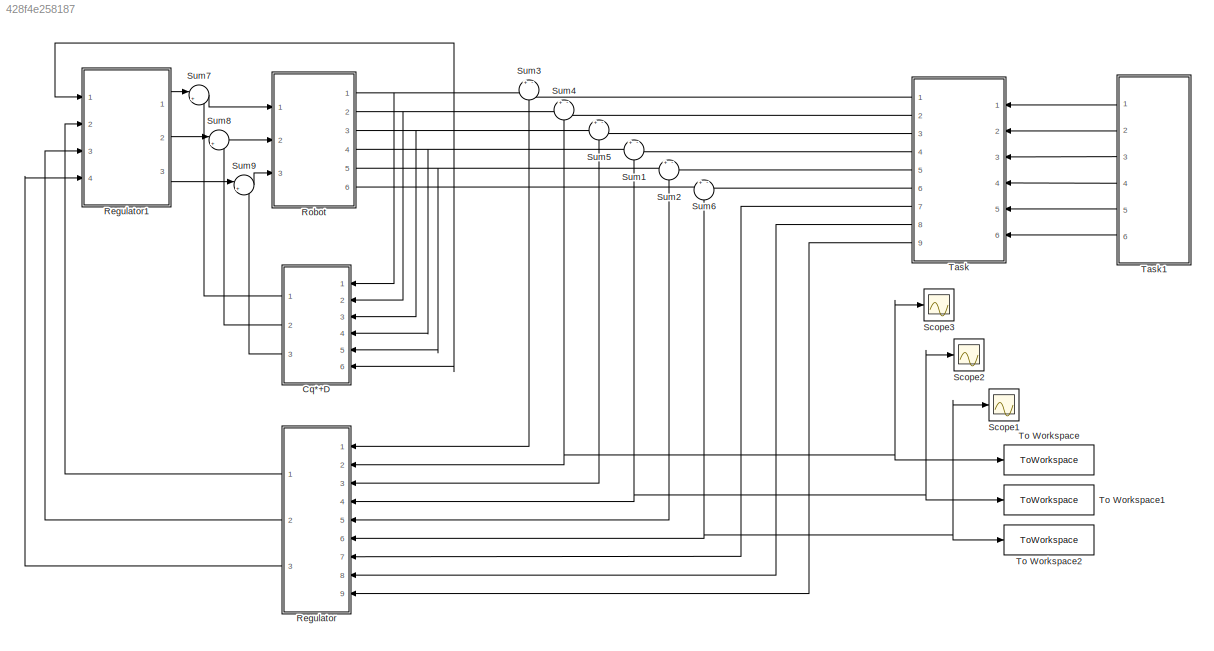
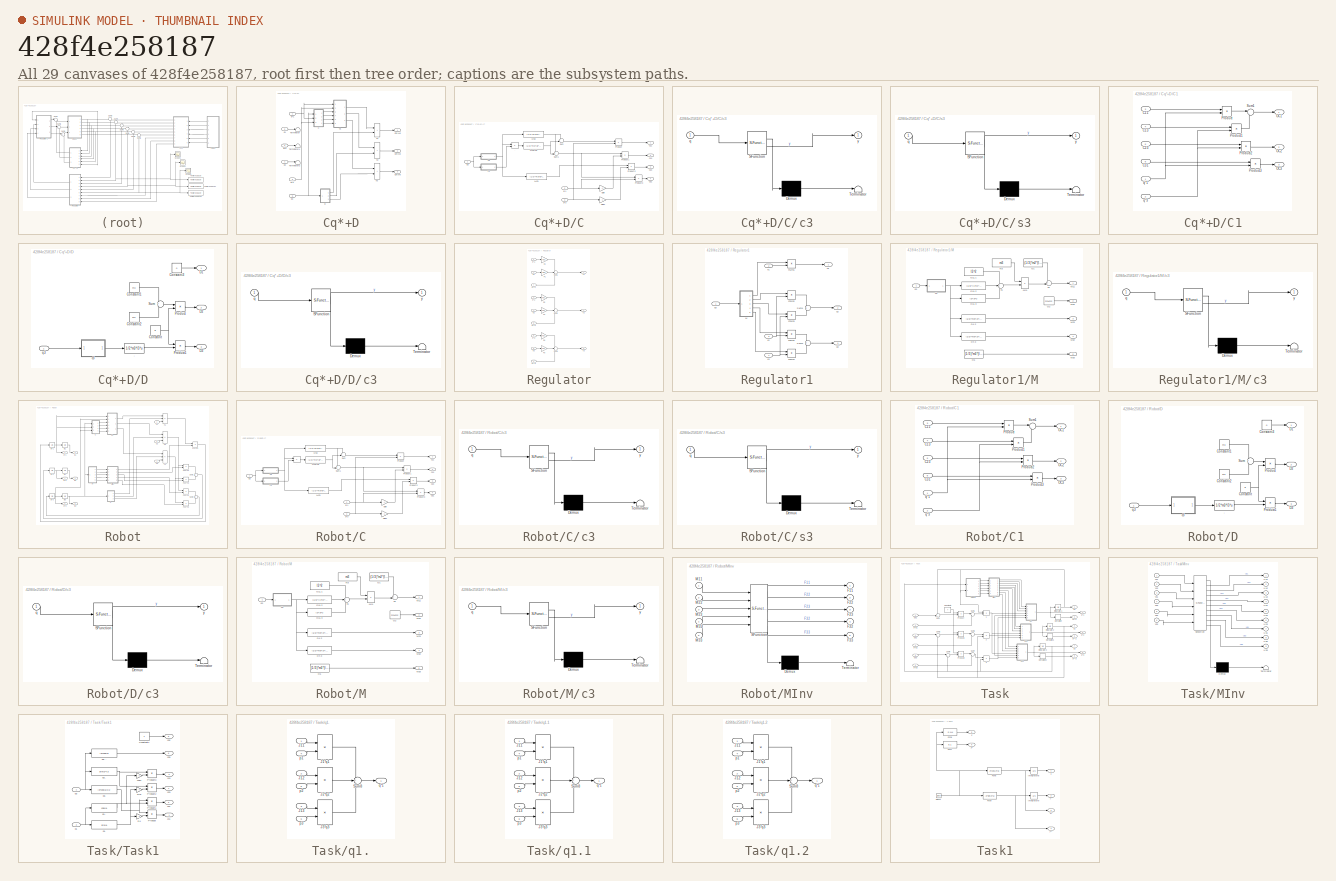
[diagram: thumbnail index - all 29 canvases of the model, root first then tree order]
MODEL slx_428f4e258187
KIND model
CONFIG AbsTol = auto
CONFIG EnableMultiTasking = off
CONFIG FixedStep = auto
CONFIG MaxStep = auto
CONFIG MinStep = auto
CONFIG RelTol = 1e-8
CONFIG SampleTimeConstraint = Unconstrained
CONFIG Solver = ode45
CONFIG SolverName = ode45
CONFIG StartTime = 0.0
CONFIG StopTime = T
BLOCK [SubSystem] Cq*+D
  Ports = [6, 3]
  RequestExecContextInheritance = off
BLOCK [Outport] Cq*+D/ Cq*1+d
BLOCK [SubSystem] Cq*+D/C
  Ports = [3, 4]
  RequestExecContextInheritance = off
BLOCK [Product] Cq*+D/C/.
  Ports = [2, 1]
BLOCK [Outport] Cq*+D/C/C11
BLOCK [Outport] Cq*+D/C/C13
  Port = 2
BLOCK [Outport] Cq*+D/C/C23
  Port = 3
BLOCK [Outport] Cq*+D/C/C31
  Port = 4
BLOCK [Gain] Cq*+D/C/Gain
  Gain = -1
BLOCK [Gain] Cq*+D/C/Gain1
  Gain = -1
BLOCK [Product] Cq*+D/C/Product
  Ports = [2, 1]
BLOCK [Product] Cq*+D/C/Product1
  Ports = [2, 1]
BLOCK [Product] Cq*+D/C/Product2
  Ports = [2, 1]
BLOCK [Product] Cq*+D/C/Product3
  Ports = [2, 1]
BLOCK [Sum] Cq*+D/C/Sum
  Inputs = --
  Ports = [2, 1]
BLOCK [Sum] Cq*+D/C/Sum1
  Inputs = ++|
  Ports = [2, 1]
BLOCK [SubSystem] Cq*+D/C/c3
  ErrorFcn = Stateflow.Translate.translate
  PermitHierarchicalResolution = ExplicitOnly
  Ports = [1, 1]
  RequestExecContextInheritance = off
  SFBlockType = MATLAB Function
  TreatAsAtomicUnit = on
BLOCK [Demux] Cq*+D/C/c3/ Demux 
  Outputs = 1
  Ports = [1, 1]
BLOCK [S-Function] Cq*+D/C/c3/ SFunction 
  EnableBusSupport = on
  FunctionName = sf_sfun
  PortCounts = [1 2]
  Ports = [1, 2]
  SFcnIsStateOwnerBlock = off
  SFunctionDeploymentMode = off
  Tag = Stateflow S-Function 4
BLOCK [Terminator] Cq*+D/C/c3/ Terminator 
BLOCK [Inport] Cq*+D/C/c3/q
BLOCK [Outport] Cq*+D/C/c3/y
BLOCK [Inport] Cq*+D/C/q*1
  Port = 2
BLOCK [Inport] Cq*+D/C/q*3
  Port = 3
BLOCK [Inport] Cq*+D/C/q3
BLOCK [SubSystem] Cq*+D/C/s3
  ErrorFcn = Stateflow.Translate.translate
  PermitHierarchicalResolution = ExplicitOnly
  Ports = [1, 1]
  RequestExecContextInheritance = off
  SFBlockType = MATLAB Function
  TreatAsAtomicUnit = on
BLOCK [Demux] Cq*+D/C/s3/ Demux 
  Outputs = 1
  Ports = [1, 1]
BLOCK [S-Function] Cq*+D/C/s3/ SFunction 
  EnableBusSupport = on
  FunctionName = sf_sfun
  PortCounts = [1 2]
  Ports = [1, 2]
  SFcnIsStateOwnerBlock = off
  SFunctionDeploymentMode = off
  Tag = Stateflow S-Function 7
BLOCK [Terminator] Cq*+D/C/s3/ Terminator 
BLOCK [Inport] Cq*+D/C/s3/q
BLOCK [Outport] Cq*+D/C/s3/y
BLOCK [Fcn] Cq*+D/C/u=C3*S3
  Expr = (1/3)*m3*(l3^2)*u
BLOCK [Fcn] Cq*+D/C/u=S3
  Expr = (1/2)*m3*l2*l3*u
BLOCK [Fcn] Cq*+D/C/u=S3.
  Expr = (1/2)*m3*l2*l3*u
BLOCK [SubSystem] Cq*+D/C1
  Ports = [6, 3]
  RequestExecContextInheritance = off
BLOCK [Inport] Cq*+D/C1/C11
  Port = 3
BLOCK [Inport] Cq*+D/C1/C13
  Port = 4
BLOCK [Inport] Cq*+D/C1/C23
  Port = 5
BLOCK [Inport] Cq*+D/C1/C31
  Port = 6
BLOCK [Outport] Cq*+D/C1/OC1
BLOCK [Outport] Cq*+D/C1/OC2
  Port = 2
BLOCK [Outport] Cq*+D/C1/OC3
  Port = 3
BLOCK [Product] Cq*+D/C1/Product
  Ports = [2, 1]
BLOCK [Product] Cq*+D/C1/Product1
  Ports = [2, 1]
BLOCK [Product] Cq*+D/C1/Product2
  Ports = [2, 1]
BLOCK [Product] Cq*+D/C1/Product3
  Ports = [2, 1]
BLOCK [Sum] Cq*+D/C1/Sum1
  Inputs = |++
  Ports = [2, 1]
BLOCK [Inport] Cq*+D/C1/q*1
BLOCK [Inport] Cq*+D/C1/q*3
  Port = 2
BLOCK [Outport] Cq*+D/Cq*2+d
  Port = 2
BLOCK [Outport] Cq*+D/Cq*3+d
  Port = 3
BLOCK [SubSystem] Cq*+D/D
  Ports = [1, 3]
  RequestExecContextInheritance = off
BLOCK [Fcn] Cq*+D/D/.
  Expr = 1/2*m3*l3*u
BLOCK [Constant] Cq*+D/D/Constant
  Value = g
BLOCK [Constant] Cq*+D/D/Constant1
  Value = m3
BLOCK [Constant] Cq*+D/D/Constant2
  Value = m2
BLOCK [Constant] Cq*+D/D/Constant3
  Value = 0
BLOCK [Outport] Cq*+D/D/D1
BLOCK [Outport] Cq*+D/D/D2
  Port = 2
BLOCK [Outport] Cq*+D/D/D3
  Port = 3
BLOCK [Product] Cq*+D/D/Product
  Ports = [2, 1]
BLOCK [Product] Cq*+D/D/Product1
  Ports = [2, 1]
BLOCK [Sum] Cq*+D/D/Sum
  Ports = [2, 1]
BLOCK [SubSystem] Cq*+D/D/c3
  ErrorFcn = Stateflow.Translate.translate
  PermitHierarchicalResolution = ExplicitOnly
  Ports = [1, 1]
  RequestExecContextInheritance = off
  SFBlockType = MATLAB Function
  TreatAsAtomicUnit = on
BLOCK [Demux] Cq*+D/D/c3/ Demux 
  Outputs = 1
  Ports = [1, 1]
BLOCK [S-Function] Cq*+D/D/c3/ SFunction 
  EnableBusSupport = on
  FunctionName = sf_sfun
  PortCounts = [1 2]
  Ports = [1, 2]
  SFcnIsStateOwnerBlock = off
  SFunctionDeploymentMode = off
  Tag = Stateflow S-Function 8
BLOCK [Terminator] Cq*+D/D/c3/ Terminator 
BLOCK [Inport] Cq*+D/D/c3/q
BLOCK [Outport] Cq*+D/D/c3/y
BLOCK [Inport] Cq*+D/D/q3
BLOCK [Terminator] Cq*+D/Terminator
BLOCK [Terminator] Cq*+D/Terminator1
BLOCK [Terminator] Cq*+D/Terminator2
BLOCK [Sum] Cq*+D/h1
  IconShape = rectangular
  Ports = [2, 1]
BLOCK [Sum] Cq*+D/h2
  IconShape = rectangular
  Ports = [2, 1]
BLOCK [Sum] Cq*+D/h3
  IconShape = rectangular
  Ports = [2, 1]
BLOCK [Inport] Cq*+D/q*1
BLOCK [Inport] Cq*+D/q*2
  Port = 3
BLOCK [Inport] Cq*+D/q*3
  Port = 5
BLOCK [Inport] Cq*+D/q1
  Port = 2
BLOCK [Inport] Cq*+D/q2
  Port = 4
BLOCK [Inport] Cq*+D/q3
  Port = 6
BLOCK [SubSystem] Regulator
  Ports = [9, 3]
  RequestExecContextInheritance = off
BLOCK [Outport] Regulator/ v1
BLOCK [Gain] Regulator/D1
  Gain = Kd1
BLOCK [Gain] Regulator/D2
  Gain = Kd1
BLOCK [Gain] Regulator/D3
  Gain = Kd1
BLOCK [Gain] Regulator/P1
  Gain = Kp1
BLOCK [Gain] Regulator/P2
  Gain = Kp1
BLOCK [Gain] Regulator/P3
  Gain = Kp1
BLOCK [Sum] Regulator/Sum1
  Inputs = --+
  Ports = [3, 1]
BLOCK [Sum] Regulator/Sum2
  Inputs = --+
  Ports = [3, 1]
BLOCK [Sum] Regulator/Sum3
  Inputs = --+
  Ports = [3, 1]
BLOCK [Inport] Regulator/e**1
  Port = 7
BLOCK [Inport] Regulator/e**2
  Port = 8
BLOCK [Inport] Regulator/e**3
  Port = 9
BLOCK [Inport] Regulator/e*1
BLOCK [Inport] Regulator/e*2
  Port = 3
BLOCK [Inport] Regulator/e*3
  Port = 5
BLOCK [Inport] Regulator/e1
  Port = 2
BLOCK [Inport] Regulator/e2
  Port = 4
BLOCK [Inport] Regulator/e3
  Port = 6
BLOCK [Outport] Regulator/v2
  Port = 2
BLOCK [Outport] Regulator/v3
  Port = 3
BLOCK [SubSystem] Regulator1
  Ports = [4, 3]
  RequestExecContextInheritance = off
BLOCK [Outport] Regulator1/ u1
BLOCK [Product] Regulator1/F11*h1
  Ports = [2, 1]
BLOCK [Product] Regulator1/F22*h2
  Ports = [2, 1]
BLOCK [Product] Regulator1/F23*h3
  Ports = [2, 1]
BLOCK [Product] Regulator1/F32*h2
  Ports = [2, 1]
BLOCK [Product] Regulator1/F33*h3
  Ports = [2, 1]
BLOCK [SubSystem] Regulator1/M
  Ports = [1, 5]
  RequestExecContextInheritance = off
BLOCK [Product] Regulator1/M/.M11
  Ports = [2, 1]
BLOCK [Outport] Regulator1/M/M11
BLOCK [Outport] Regulator1/M/M22
  Port = 2
BLOCK [Outport] Regulator1/M/M23
  Port = 3
BLOCK [Outport] Regulator1/M/M32
  Port = 4
BLOCK [Outport] Regulator1/M/M33
  Port = 5
BLOCK [Constant] Regulator1/M/O1
  Value = (1/3)*m2*(l2^2)
BLOCK [Constant] Regulator1/M/O11.1
  Value = l2^2
BLOCK [Fcn] Regulator1/M/O11.2
  Expr = (1/3)*(l3^2)*(u^2)
BLOCK [Fcn] Regulator1/M/O11.3
  Expr = l2*l3*u
BLOCK [Constant] Regulator1/M/O2
  Value = m3+m2
BLOCK [Fcn] Regulator1/M/O4.2
  Expr = (1/2)*m3*l2*l3*u
BLOCK [Fcn] Regulator1/M/O4.3
  Expr = (1/2)*m3*l2*l3*u
BLOCK [Constant] Regulator1/M/O5
  Value = (1/3)*m3*(l3^2)
BLOCK [SubSystem] Regulator1/M/c3
  ErrorFcn = Stateflow.Translate.translate
  PermitHierarchicalResolution = ExplicitOnly
  Ports = [1, 1]
  RequestExecContextInheritance = off
  SFBlockType = MATLAB Function
  TreatAsAtomicUnit = on
BLOCK [Demux] Regulator1/M/c3/ Demux 
  Outputs = 1
  Ports = [1, 1]
BLOCK [S-Function] Regulator1/M/c3/ SFunction 
  EnableBusSupport = on
  FunctionName = sf_sfun
  PortCounts = [1 2]
  Ports = [1, 2]
  SFcnIsStateOwnerBlock = off
  SFunctionDeploymentMode = off
  Tag = Stateflow S-Function 9
BLOCK [Terminator] Regulator1/M/c3/ Terminator 
BLOCK [Inport] Regulator1/M/c3/q
BLOCK [Outport] Regulator1/M/c3/y
BLOCK [Sum] Regulator1/M/h1
  Inputs = +++
  Ports = [3, 1]
BLOCK [Sum] Regulator1/M/h2
  Inputs = ++|
  Ports = [2, 1]
BLOCK [Constant] Regulator1/M/m3
  Value = m3
BLOCK [Inport] Regulator1/M/q3
BLOCK [Sum] Regulator1/Sum1
  Ports = [2, 1]
BLOCK [Sum] Regulator1/Sum2
  Ports = [2, 1]
BLOCK [Inport] Regulator1/q3
BLOCK [Outport] Regulator1/u2
  Port = 2
BLOCK [Outport] Regulator1/u3
  Port = 3
BLOCK [Inport] Regulator1/v1
  Port = 2
BLOCK [Inport] Regulator1/v2
  Port = 3
BLOCK [Inport] Regulator1/v3
  Port = 4
BLOCK [SubSystem] Robot
  Ports = [3, 6]
  RequestExecContextInheritance = off
BLOCK [SubSystem] Robot/C
  Ports = [3, 4]
  RequestExecContextInheritance = off
BLOCK [Product] Robot/C/.
  Ports = [2, 1]
BLOCK [Outport] Robot/C/C11
BLOCK [Outport] Robot/C/C13
  Port = 2
BLOCK [Outport] Robot/C/C23
  Port = 3
BLOCK [Outport] Robot/C/C31
  Port = 4
BLOCK [Gain] Robot/C/Gain
  Gain = -1
BLOCK [Gain] Robot/C/Gain1
  Gain = -1
BLOCK [Product] Robot/C/Product
  Ports = [2, 1]
BLOCK [Product] Robot/C/Product1
  Ports = [2, 1]
BLOCK [Product] Robot/C/Product2
  Ports = [2, 1]
BLOCK [Product] Robot/C/Product3
  Ports = [2, 1]
BLOCK [Sum] Robot/C/Sum
  Inputs = --
  Ports = [2, 1]
BLOCK [Sum] Robot/C/Sum1
  Inputs = ++|
  Ports = [2, 1]
BLOCK [SubSystem] Robot/C/c3
  ErrorFcn = Stateflow.Translate.translate
  PermitHierarchicalResolution = ExplicitOnly
  Ports = [1, 1]
  RequestExecContextInheritance = off
  SFBlockType = MATLAB Function
  TreatAsAtomicUnit = on
BLOCK [Demux] Robot/C/c3/ Demux 
  Outputs = 1
  Ports = [1, 1]
BLOCK [S-Function] Robot/C/c3/ SFunction 
  EnableBusSupport = on
  FunctionName = sf_sfun
  PortCounts = [1 2]
  Ports = [1, 2]
  SFcnIsStateOwnerBlock = off
  SFunctionDeploymentMode = off
  Tag = Stateflow S-Function 2
BLOCK [Terminator] Robot/C/c3/ Terminator 
BLOCK [Inport] Robot/C/c3/q
BLOCK [Outport] Robot/C/c3/y
BLOCK [Inport] Robot/C/q*1
  Port = 2
BLOCK [Inport] Robot/C/q*3
  Port = 3
BLOCK [Inport] Robot/C/q3
BLOCK [SubSystem] Robot/C/s3
  ErrorFcn = Stateflow.Translate.translate
  PermitHierarchicalResolution = ExplicitOnly
  Ports = [1, 1]
  RequestExecContextInheritance = off
  SFBlockType = MATLAB Function
  TreatAsAtomicUnit = on
BLOCK [Demux] Robot/C/s3/ Demux 
  Outputs = 1
  Ports = [1, 1]
BLOCK [S-Function] Robot/C/s3/ SFunction 
  EnableBusSupport = on
  FunctionName = sf_sfun
  PortCounts = [1 2]
  Ports = [1, 2]
  SFcnIsStateOwnerBlock = off
  SFunctionDeploymentMode = off
  Tag = Stateflow S-Function 5
BLOCK [Terminator] Robot/C/s3/ Terminator 
BLOCK [Inport] Robot/C/s3/q
BLOCK [Outport] Robot/C/s3/y
BLOCK [Fcn] Robot/C/u=C3*S3
  Expr = (1/3)*m3*(l3^2)*u
BLOCK [Fcn] Robot/C/u=S3
  Expr = (1/2)*m3*l2*l3*u
BLOCK [Fcn] Robot/C/u=S3.
  Expr = (1/2)*m3*l2*l3*u
BLOCK [SubSystem] Robot/C1
  Ports = [6, 3]
  RequestExecContextInheritance = off
BLOCK [Inport] Robot/C1/C11
  Port = 3
BLOCK [Inport] Robot/C1/C13
  Port = 4
BLOCK [Inport] Robot/C1/C23
  Port = 5
BLOCK [Inport] Robot/C1/C31
  Port = 6
BLOCK [Outport] Robot/C1/OC1
BLOCK [Outport] Robot/C1/OC2
  Port = 2
BLOCK [Outport] Robot/C1/OC3
  Port = 3
BLOCK [Product] Robot/C1/Product
  Ports = [2, 1]
BLOCK [Product] Robot/C1/Product1
  Ports = [2, 1]
BLOCK [Product] Robot/C1/Product2
  Ports = [2, 1]
BLOCK [Product] Robot/C1/Product3
  Ports = [2, 1]
BLOCK [Sum] Robot/C1/Sum1
  Inputs = |++
  Ports = [2, 1]
BLOCK [Inport] Robot/C1/q*1
BLOCK [Inport] Robot/C1/q*3
  Port = 2
BLOCK [SubSystem] Robot/D
  Ports = [1, 3]
  RequestExecContextInheritance = off
BLOCK [Fcn] Robot/D/.
  Expr = 1/2*m3*l3*u
BLOCK [Constant] Robot/D/Constant
  Value = g
BLOCK [Constant] Robot/D/Constant1
  Value = m3
BLOCK [Constant] Robot/D/Constant2
  Value = m2
BLOCK [Constant] Robot/D/Constant3
  Value = 0
BLOCK [Outport] Robot/D/D1
BLOCK [Outport] Robot/D/D2
  Port = 2
BLOCK [Outport] Robot/D/D3
  Port = 3
BLOCK [Product] Robot/D/Product
  Ports = [2, 1]
BLOCK [Product] Robot/D/Product1
  Ports = [2, 1]
BLOCK [Sum] Robot/D/Sum
  Ports = [2, 1]
BLOCK [SubSystem] Robot/D/c3
  ErrorFcn = Stateflow.Translate.translate
  PermitHierarchicalResolution = ExplicitOnly
  Ports = [1, 1]
  RequestExecContextInheritance = off
  SFBlockType = MATLAB Function
  TreatAsAtomicUnit = on
BLOCK [Demux] Robot/D/c3/ Demux 
  Outputs = 1
  Ports = [1, 1]
BLOCK [S-Function] Robot/D/c3/ SFunction 
  EnableBusSupport = on
  FunctionName = sf_sfun
  PortCounts = [1 2]
  Ports = [1, 2]
  SFcnIsStateOwnerBlock = off
  SFunctionDeploymentMode = off
  Tag = Stateflow S-Function 3
BLOCK [Terminator] Robot/D/c3/ Terminator 
BLOCK [Inport] Robot/D/c3/q
BLOCK [Outport] Robot/D/c3/y
BLOCK [Inport] Robot/D/q3
BLOCK [Product] Robot/F11*h1
  Ports = [2, 1]
BLOCK [Product] Robot/F22*h2
  Ports = [2, 1]
BLOCK [Product] Robot/F23*h3
  Ports = [2, 1]
BLOCK [Product] Robot/F32*h2
  Ports = [2, 1]
BLOCK [Product] Robot/F33*h3
  Ports = [2, 1]
BLOCK [Integrator] Robot/I q*1
  Ports = [1, 1]
BLOCK [Integrator] Robot/I q*2
  Ports = [1, 1]
BLOCK [Integrator] Robot/I q*3
  Ports = [1, 1]
BLOCK [Integrator] Robot/I q1
  Ports = [1, 1]
BLOCK [Integrator] Robot/I q2
  Ports = [1, 1]
BLOCK [Integrator] Robot/I q3
  Ports = [1, 1]
BLOCK [SubSystem] Robot/M
  Ports = [1, 5]
  RequestExecContextInheritance = off
BLOCK [Product] Robot/M/.M11
  Ports = [2, 1]
BLOCK [Outport] Robot/M/M11
BLOCK [Outport] Robot/M/M22
  Port = 2
BLOCK [Outport] Robot/M/M23
  Port = 3
BLOCK [Outport] Robot/M/M32
  Port = 4
BLOCK [Outport] Robot/M/M33
  Port = 5
BLOCK [Constant] Robot/M/O1
  Value = (1/3)*m2*(l2^2)
BLOCK [Constant] Robot/M/O11.1
  Value = l2^2
BLOCK [Fcn] Robot/M/O11.2
  Expr = (1/3)*(l3^2)*(u^2)
BLOCK [Fcn] Robot/M/O11.3
  Expr = l2*l3*u
BLOCK [Constant] Robot/M/O2
  Value = m3+m2
BLOCK [Fcn] Robot/M/O4.2
  Expr = (1/2)*m3*l2*l3*u
BLOCK [Fcn] Robot/M/O4.3
  Expr = (1/2)*m3*l2*l3*u
BLOCK [Constant] Robot/M/O5
  Value = (1/3)*m3*(l3^2)
BLOCK [SubSystem] Robot/M/c3
  ErrorFcn = Stateflow.Translate.translate
  PermitHierarchicalResolution = ExplicitOnly
  Ports = [1, 1]
  RequestExecContextInheritance = off
  SFBlockType = MATLAB Function
  TreatAsAtomicUnit = on
BLOCK [Demux] Robot/M/c3/ Demux 
  Outputs = 1
  Ports = [1, 1]
BLOCK [S-Function] Robot/M/c3/ SFunction 
  EnableBusSupport = on
  FunctionName = sf_sfun
  PortCounts = [1 2]
  Ports = [1, 2]
  SFcnIsStateOwnerBlock = off
  SFunctionDeploymentMode = off
  Tag = Stateflow S-Function 1
BLOCK [Terminator] Robot/M/c3/ Terminator 
BLOCK [Inport] Robot/M/c3/q
BLOCK [Outport] Robot/M/c3/y
BLOCK [Sum] Robot/M/h1
  Inputs = +++
  Ports = [3, 1]
BLOCK [Sum] Robot/M/h2
  Inputs = ++|
  Ports = [2, 1]
BLOCK [Constant] Robot/M/m3
  Value = m3
BLOCK [Inport] Robot/M/q3
BLOCK [SubSystem] Robot/MInv
  ErrorFcn = Stateflow.Translate.translate
  PermitHierarchicalResolution = ExplicitOnly
  Ports = [5, 5]
  RequestExecContextInheritance = off
  SFBlockType = MATLAB Function
  TreatAsAtomicUnit = on
BLOCK [Demux] Robot/MInv/ Demux 
  Outputs = 1
  Ports = [1, 1]
BLOCK [S-Function] Robot/MInv/ SFunction 
  EnableBusSupport = on
  FunctionName = sf_sfun
  PortCounts = [5 6]
  Ports = [5, 6]
  SFcnIsStateOwnerBlock = off
  SFunctionDeploymentMode = off
  Tag = Stateflow S-Function 6
BLOCK [Terminator] Robot/MInv/ Terminator 
BLOCK [Outport] Robot/MInv/F11
BLOCK [Outport] Robot/MInv/F22
  Port = 2
BLOCK [Outport] Robot/MInv/F23
  Port = 3
BLOCK [Outport] Robot/MInv/F32
  Port = 4
BLOCK [Outport] Robot/MInv/F33
  Port = 5
BLOCK [Inport] Robot/MInv/M11
BLOCK [Inport] Robot/MInv/M22
  Port = 2
BLOCK [Inport] Robot/MInv/M23
  Port = 3
BLOCK [Inport] Robot/MInv/M32
  Port = 4
BLOCK [Inport] Robot/MInv/M33
  Port = 5
BLOCK [Sum] Robot/Sum1
  Ports = [2, 1]
BLOCK [Sum] Robot/Sum2
  Ports = [2, 1]
BLOCK [Sum] Robot/h1
  IconShape = rectangular
  Inputs = --+
  Ports = [3, 1]
BLOCK [Sum] Robot/h2
  IconShape = rectangular
  Inputs = --+
  Ports = [3, 1]
BLOCK [Sum] Robot/h3
  IconShape = rectangular
  Inputs = --+
  Ports = [3, 1]
BLOCK [Outport] Robot/q*1
BLOCK [Outport] Robot/q*2
  Port = 3
BLOCK [Outport] Robot/q*3
  Port = 5
BLOCK [Outport] Robot/q1
  Port = 2
BLOCK [Outport] Robot/q2
  Port = 4
BLOCK [Outport] Robot/q3
  Port = 6
BLOCK [Inport] Robot/u1
BLOCK [Inport] Robot/u2
  Port = 2
BLOCK [Inport] Robot/u3
  Port = 3
BLOCK [Scope] Scope1
  Floating = off
  NumInputPorts = 1
  Ports = [1]
  ScopeSpecificationString = Simulink.scopes.TimeScopeBlockCfg('CurrentConfiguration', extmgr.ConfigurationSet(extmgr.Configuration('Core','General UI',true),extmgr.Configuration('Core','Source UI',true),extmgr.Configuration('Sources','WiredSimulink',true,'DataLoggingVariableName','ScopeData1'),extmgr.Configuration('Visuals','Time Domain',true,'SerializedDisplays',{struct('MinYLimReal','-0.67514','MaxYLimReal','0.07502','YLab...<+1392ch>
BLOCK [Scope] Scope2
  Floating = off
  NumInputPorts = 1
  Ports = [1]
  ScopeSpecificationString = Simulink.scopes.TimeScopeBlockCfg('CurrentConfiguration', extmgr.ConfigurationSet(extmgr.Configuration('Core','General UI',true),extmgr.Configuration('Core','Source UI',true),extmgr.Configuration('Sources','WiredSimulink',true,'DataLoggingVariableName','ScopeData1'),extmgr.Configuration('Visuals','Time Domain',true,'SerializedDisplays',{struct('MinYLimReal','-0.4555','MaxYLimReal','0.09951','YLabe...<+1387ch>
BLOCK [Scope] Scope3
  Floating = off
  NumInputPorts = 1
  Ports = [1]
  ScopeSpecificationString = Simulink.scopes.TimeScopeBlockCfg('CurrentConfiguration', extmgr.ConfigurationSet(extmgr.Configuration('Core','General UI',true),extmgr.Configuration('Core','Source UI',true),extmgr.Configuration('Sources','WiredSimulink',true,'DataLoggingVariableName','ScopeData2'),extmgr.Configuration('Visuals','Time Domain',true,'SerializedDisplays',{struct('MinYLimReal','-0.45021','MaxYLimReal','0.05002','YLab...<+1391ch>
BLOCK [Sum] Sum1
  Inputs = +-
  NameLocation = left
  Ports = [2, 1]
BLOCK [Sum] Sum2
  Inputs = +-
  NameLocation = left
  Ports = [2, 1]
BLOCK [Sum] Sum3
  Inputs = +-
  NameLocation = left
  Ports = [2, 1]
BLOCK [Sum] Sum4
  Inputs = +-
  NameLocation = left
  Ports = [2, 1]
BLOCK [Sum] Sum5
  Inputs = +-
  NameLocation = left
  Ports = [2, 1]
BLOCK [Sum] Sum6
  Inputs = +-
  NameLocation = left
  Ports = [2, 1]
BLOCK [Sum] Sum7
  Inputs = |++
  Ports = [2, 1]
BLOCK [Sum] Sum8
  Inputs = |++
  Ports = [2, 1]
BLOCK [Sum] Sum9
  Inputs = |++
  Ports = [2, 1]
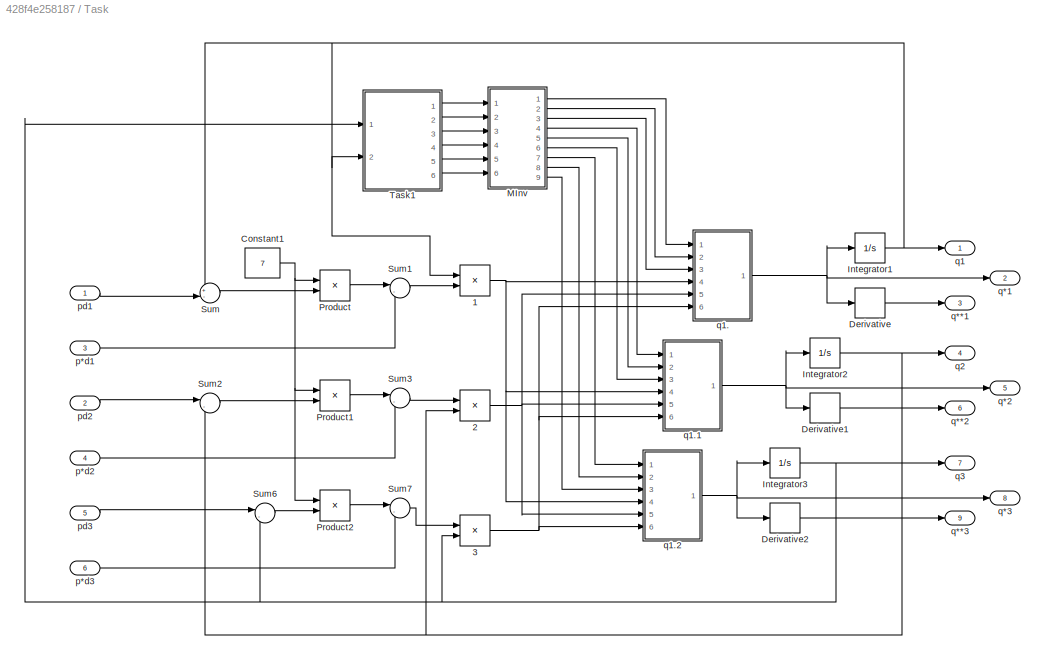
BLOCK [SubSystem] Task
  Ports = [6, 9]
  RequestExecContextInheritance = off
BLOCK [Product] Task/1
  Ports = [2, 1]
BLOCK [Product] Task/2
  Ports = [2, 1]
BLOCK [Product] Task/3
  Ports = [2, 1]
BLOCK [Constant] Task/Constant1
  Value = 7
BLOCK [Derivative] Task/Derivative
BLOCK [Derivative] Task/Derivative1
BLOCK [Derivative] Task/Derivative2
BLOCK [Integrator] Task/Integrator1
  Ports = [1, 1]
BLOCK [Integrator] Task/Integrator2
  Ports = [1, 1]
BLOCK [Integrator] Task/Integrator3
  InitialCondition = 0.1
  Ports = [1, 1]
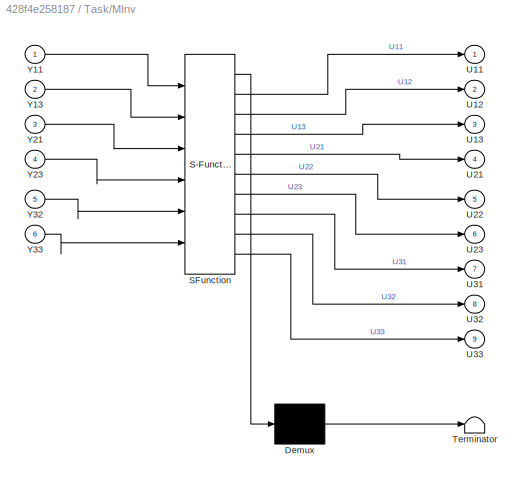
BLOCK [SubSystem] Task/MInv
  ErrorFcn = Stateflow.Translate.translate
  PermitHierarchicalResolution = ExplicitOnly
  Ports = [6, 9]
  RequestExecContextInheritance = off
  SFBlockType = MATLAB Function
  TreatAsAtomicUnit = on
BLOCK [Demux] Task/MInv/ Demux 
  Outputs = 1
  Ports = [1, 1]
BLOCK [S-Function] Task/MInv/ SFunction 
  EnableBusSupport = on
  FunctionName = sf_sfun
  PortCounts = [6 10]
  Ports = [6, 10]
  SFcnIsStateOwnerBlock = off
  SFunctionDeploymentMode = off
  Tag = Stateflow S-Function 10
BLOCK [Terminator] Task/MInv/ Terminator 
BLOCK [Outport] Task/MInv/U11
BLOCK [Outport] Task/MInv/U12
  Port = 2
BLOCK [Outport] Task/MInv/U13
  Port = 3
BLOCK [Outport] Task/MInv/U21
  Port = 4
BLOCK [Outport] Task/MInv/U22
  Port = 5
BLOCK [Outport] Task/MInv/U23
  Port = 6
BLOCK [Outport] Task/MInv/U31
  Port = 7
BLOCK [Outport] Task/MInv/U32
  Port = 8
BLOCK [Outport] Task/MInv/U33
  Port = 9
BLOCK [Inport] Task/MInv/Y11
BLOCK [Inport] Task/MInv/Y13
  Port = 2
BLOCK [Inport] Task/MInv/Y21
  Port = 3
BLOCK [Inport] Task/MInv/Y23
  Port = 4
BLOCK [Inport] Task/MInv/Y32
  Port = 5
BLOCK [Inport] Task/MInv/Y33
  Port = 6
BLOCK [Product] Task/Product
  Ports = [2, 1]
BLOCK [Product] Task/Product1
  Ports = [2, 1]
BLOCK [Product] Task/Product2
  Ports = [2, 1]
BLOCK [Sum] Task/Sum
  Inputs = +-|
  Ports = [2, 1]
BLOCK [Sum] Task/Sum1
  Inputs = |-+
  Ports = [2, 1]
BLOCK [Sum] Task/Sum2
  Inputs = |-+
  Ports = [2, 1]
BLOCK [Sum] Task/Sum3
  Inputs = |-+
  Ports = [2, 1]
BLOCK [Sum] Task/Sum6
  Inputs = |-+
  Ports = [2, 1]
BLOCK [Sum] Task/Sum7
  Inputs = |-+
  Ports = [2, 1]
BLOCK [SubSystem] Task/Task1
  Ports = [2, 6]
  RequestExecContextInheritance = off
BLOCK [Constant] Task/Task1/Constant1
BLOCK [Gain] Task/Task1/D1
  Gain = -1
BLOCK [Outport] Task/Task1/J11
BLOCK [Outport] Task/Task1/J13
  Port = 2
BLOCK [Outport] Task/Task1/J21
  Port = 3
BLOCK [Outport] Task/Task1/J23
  Port = 4
BLOCK [Outport] Task/Task1/J32
  Port = 5
BLOCK [Outport] Task/Task1/J33
  Port = 6
BLOCK [Product] Task/Task1/Product
  Ports = [2, 1]
BLOCK [Product] Task/Task1/Product1
  Ports = [2, 1]
BLOCK [Product] Task/Task1/Product2
  Ports = [2, 1]
BLOCK [Product] Task/Task1/Product3
  Ports = [2, 1]
BLOCK [Gain] Task/Task1/cos1
  Gain = -1
BLOCK [Inport] Task/Task1/q1
  Port = 2
BLOCK [Fcn] Task/Task1/q1.
  Expr = sin(u)
BLOCK [Fcn] Task/Task1/q1..
  Expr = cos(u)
BLOCK [Inport] Task/Task1/q3
BLOCK [Fcn] Task/Task1/q3.
  Expr = l3*cos(u)+l2
BLOCK [Fcn] Task/Task1/q3..
  Expr = sin(u)*l3
BLOCK [Fcn] Task/Task1/q3...
  Expr = l3*cos(u)
BLOCK [Gain] Task/Task1/sin1
  Gain = -1
BLOCK [Inport] Task/p*d1
  Port = 3
BLOCK [Inport] Task/p*d2
  Port = 4
BLOCK [Inport] Task/p*d3
  Port = 6
BLOCK [Inport] Task/pd1
BLOCK [Inport] Task/pd2
  Port = 2
BLOCK [Inport] Task/pd3
  Port = 5
BLOCK [Outport] Task/q**1
  Port = 3
BLOCK [Outport] Task/q**2
  Port = 6
BLOCK [Outport] Task/q**3
  Port = 9
BLOCK [Outport] Task/q*1
  Port = 2
BLOCK [Outport] Task/q*2
  Port = 5
BLOCK [Outport] Task/q*3
  Port = 8
BLOCK [Outport] Task/q1
BLOCK [SubSystem] Task/q1.
  Ports = [6, 1]
  RequestExecContextInheritance = off
BLOCK [Product] Task/q1./J1*q1
  Ports = [2, 1]
BLOCK [Inport] Task/q1./J11
BLOCK [Inport] Task/q1./J12
  Port = 2
BLOCK [Inport] Task/q1./J13
  Port = 3
BLOCK [Product] Task/q1./J2*q2
  Ports = [2, 1]
BLOCK [Product] Task/q1./J3*q3
  Ports = [2, 1]
BLOCK [Sum] Task/q1./Sum8
  Inputs = +++
  Ports = [3, 1]
BLOCK [Inport] Task/q1./p1
  Port = 4
BLOCK [Inport] Task/q1./p2
  Port = 5
BLOCK [Inport] Task/q1./p3
  Port = 6
BLOCK [Outport] Task/q1./q*1
BLOCK [SubSystem] Task/q1.1
  Ports = [6, 1]
  RequestExecContextInheritance = off
BLOCK [Product] Task/q1.1/J1*q1
  Ports = [2, 1]
BLOCK [Inport] Task/q1.1/J11
BLOCK [Inport] Task/q1.1/J12
  Port = 2
BLOCK [Inport] Task/q1.1/J13
  Port = 3
BLOCK [Product] Task/q1.1/J2*q2
  Ports = [2, 1]
BLOCK [Product] Task/q1.1/J3*q3
  Ports = [2, 1]
BLOCK [Sum] Task/q1.1/Sum8
  Inputs = +++
  Ports = [3, 1]
BLOCK [Inport] Task/q1.1/p1
  Port = 4
BLOCK [Inport] Task/q1.1/p2
  Port = 5
BLOCK [Inport] Task/q1.1/p3
  Port = 6
BLOCK [Outport] Task/q1.1/q*1
BLOCK [SubSystem] Task/q1.2
  Ports = [6, 1]
  RequestExecContextInheritance = off
BLOCK [Product] Task/q1.2/J1*q1
  Ports = [2, 1]
BLOCK [Inport] Task/q1.2/J11
BLOCK [Inport] Task/q1.2/J12
  Port = 2
BLOCK [Inport] Task/q1.2/J13
  Port = 3
BLOCK [Product] Task/q1.2/J2*q2
  Ports = [2, 1]
BLOCK [Product] Task/q1.2/J3*q3
  Ports = [2, 1]
BLOCK [Sum] Task/q1.2/Sum8
  Inputs = +++
  Ports = [3, 1]
BLOCK [Inport] Task/q1.2/p1
  Port = 4
BLOCK [Inport] Task/q1.2/p2
  Port = 5
BLOCK [Inport] Task/q1.2/p3
  Port = 6
BLOCK [Outport] Task/q1.2/q*1
BLOCK [Outport] Task/q2
  Port = 4
BLOCK [Outport] Task/q3
  Port = 7
BLOCK [SubSystem] Task1
  Ports = [0, 6]
  RequestExecContextInheritance = off
BLOCK [Clock] Task1/Clock1
BLOCK [Fcn] Task1/Fcn6
  Expr = 2*cos(2*u)
BLOCK [Fcn] Task1/Fcn7
  Expr = 0.1
BLOCK [Fcn] Task1/Fcn8
  Expr = 0.1+u
BLOCK [Fcn] Task1/Fcn9
  Expr = -2*sin(2*u)
BLOCK [Integrator] Task1/Integrator8
  Ports = [1, 1]
BLOCK [Integrator] Task1/Integrator9
  InitialCondition = 1
  Ports = [1, 1]
BLOCK [Outport] Task1/x
BLOCK [Outport] Task1/x*
  Port = 3
BLOCK [Outport] Task1/y
  Port = 2
BLOCK [Outport] Task1/y*'
  Port = 4
BLOCK [Outport] Task1/z
  Port = 5
BLOCK [Outport] Task1/z*
  Port = 6
BLOCK [ToWorkspace] To Workspace
  FixptAsFi = on
  MaxDataPoints = inf
  Ports = [1]
  SampleTime = -1
  VariableName = e1
BLOCK [ToWorkspace] To Workspace1
  FixptAsFi = on
  MaxDataPoints = inf
  Ports = [1]
  SampleTime = -1
  VariableName = e2
BLOCK [ToWorkspace] To Workspace2
  FixptAsFi = on
  MaxDataPoints = inf
  Ports = [1]
  SampleTime = -1
  VariableName = e3
LINE Cq*+D/C/.:1 -> Cq*+D/C/u=C3*S3:1
LINE Cq*+D/C/Gain1:1 -> Cq*+D/C/Product2:2
LINE Cq*+D/C/Gain:1 -> Cq*+D/C/Product1:2
LINE Cq*+D/C/Product1:1 -> Cq*+D/C/C13:1
LINE Cq*+D/C/Product2:1 -> Cq*+D/C/C23:1
LINE Cq*+D/C/Product3:1 -> Cq*+D/C/C31:1
LINE Cq*+D/C/Product:1 -> Cq*+D/C/C11:1
NET Cq*+D/C/Sum1:1 -> Cq*+D/C/Product1:1, Cq*+D/C/Product3:1
LINE Cq*+D/C/Sum:1 -> Cq*+D/C/Product:1
LINE Cq*+D/C/c3:1 -> Cq*+D/C/.:2
NET Cq*+D/C/q*1:1 -> Cq*+D/C/Gain:1, Cq*+D/C/Product3:2
NET Cq*+D/C/q*3:1 -> Cq*+D/C/Gain1:1, Cq*+D/C/Product:2
NET Cq*+D/C/q3:1 -> Cq*+D/C/c3:1, Cq*+D/C/s3:1
NET Cq*+D/C/s3:1 -> Cq*+D/C/.:1, Cq*+D/C/u=S3.:1, Cq*+D/C/u=S3:1
NET Cq*+D/C/u=C3*S3:1 -> Cq*+D/C/Sum1:2, Cq*+D/C/Sum:2
LINE Cq*+D/C/u=S3.:1 -> Cq*+D/C/Product2:1
NET Cq*+D/C/u=S3:1 -> Cq*+D/C/Sum1:1, Cq*+D/C/Sum:1
LINE Cq*+D/C1/C11:1 -> Cq*+D/C1/Product:1
LINE Cq*+D/C1/C13:1 -> Cq*+D/C1/Product1:1
LINE Cq*+D/C1/C23:1 -> Cq*+D/C1/Product2:1
LINE Cq*+D/C1/C31:1 -> Cq*+D/C1/Product3:1
LINE Cq*+D/C1/Product1:1 -> Cq*+D/C1/Sum1:2
LINE Cq*+D/C1/Product2:1 -> Cq*+D/C1/OC2:1
LINE Cq*+D/C1/Product3:1 -> Cq*+D/C1/OC3:1
LINE Cq*+D/C1/Product:1 -> Cq*+D/C1/Sum1:1
LINE Cq*+D/C1/Sum1:1 -> Cq*+D/C1/OC1:1
NET Cq*+D/C1/q*1:1 -> Cq*+D/C1/Product3:2, Cq*+D/C1/Product:2
NET Cq*+D/C1/q*3:1 -> Cq*+D/C1/Product1:2, Cq*+D/C1/Product2:2
LINE Cq*+D/C1:1 -> Cq*+D/h1:1
LINE Cq*+D/C1:2 -> Cq*+D/h2:1
LINE Cq*+D/C1:3 -> Cq*+D/h3:1
LINE Cq*+D/C:1 -> Cq*+D/C1:3
LINE Cq*+D/C:2 -> Cq*+D/C1:4
LINE Cq*+D/C:3 -> Cq*+D/C1:5
LINE Cq*+D/C:4 -> Cq*+D/C1:6
LINE Cq*+D/D/.:1 -> Cq*+D/D/Product1:2
LINE Cq*+D/D/Constant1:1 -> Cq*+D/D/Sum:1
LINE Cq*+D/D/Constant2:1 -> Cq*+D/D/Sum:2
LINE Cq*+D/D/Constant3:1 -> Cq*+D/D/D1:1
NET Cq*+D/D/Constant:1 -> Cq*+D/D/Product1:1, Cq*+D/D/Product:2
LINE Cq*+D/D/Product1:1 -> Cq*+D/D/D3:1
LINE Cq*+D/D/Product:1 -> Cq*+D/D/D2:1
LINE Cq*+D/D/Sum:1 -> Cq*+D/D/Product:1
LINE Cq*+D/D/c3:1 -> Cq*+D/D/.:1
LINE Cq*+D/D/q3:1 -> Cq*+D/D/c3:1
LINE Cq*+D/D:1 -> Cq*+D/h1:2
LINE Cq*+D/D:2 -> Cq*+D/h2:2
LINE Cq*+D/D:3 -> Cq*+D/h3:2
LINE Cq*+D/h1:1 -> Cq*+D/ Cq*1+d:1
LINE Cq*+D/h2:1 -> Cq*+D/Cq*2+d:1
LINE Cq*+D/h3:1 -> Cq*+D/Cq*3+d:1
NET Cq*+D/q*1:1 -> Cq*+D/C1:1, Cq*+D/C:2
LINE Cq*+D/q*2:1 -> Cq*+D/Terminator1:1
NET Cq*+D/q*3:1 -> Cq*+D/C1:2, Cq*+D/C:3
LINE Cq*+D/q1:1 -> Cq*+D/Terminator:1
LINE Cq*+D/q2:1 -> Cq*+D/Terminator2:1
NET Cq*+D/q3:1 -> Cq*+D/C:1, Cq*+D/D:1
LINE Cq*+D:1 -> Sum7:2
LINE Cq*+D:2 -> Sum8:2
LINE Cq*+D:3 -> Sum9:2
LINE Regulator/D1:1 -> Regulator/Sum1:1
LINE Regulator/D2:1 -> Regulator/Sum2:1
LINE Regulator/D3:1 -> Regulator/Sum3:1
LINE Regulator/P1:1 -> Regulator/Sum1:2
LINE Regulator/P2:1 -> Regulator/Sum2:2
LINE Regulator/P3:1 -> Regulator/Sum3:2
LINE Regulator/Sum1:1 -> Regulator/ v1:1
LINE Regulator/Sum2:1 -> Regulator/v2:1
LINE Regulator/Sum3:1 -> Regulator/v3:1
LINE Regulator/e**1:1 -> Regulator/Sum1:3
LINE Regulator/e**2:1 -> Regulator/Sum2:3
LINE Regulator/e**3:1 -> Regulator/Sum3:3
LINE Regulator/e*1:1 -> Regulator/D1:1
LINE Regulator/e*2:1 -> Regulator/D2:1
LINE Regulator/e*3:1 -> Regulator/D3:1
LINE Regulator/e1:1 -> Regulator/P1:1
LINE Regulator/e2:1 -> Regulator/P2:1
LINE Regulator/e3:1 -> Regulator/P3:1
LINE Regulator1/F11*h1:1 -> Regulator1/ u1:1
LINE Regulator1/F22*h2:1 -> Regulator1/Sum1:1
LINE Regulator1/F23*h3:1 -> Regulator1/Sum1:2
LINE Regulator1/F32*h2:1 -> Regulator1/Sum2:1
LINE Regulator1/F33*h3:1 -> Regulator1/Sum2:2
LINE Regulator1/M/.M11:1 -> Regulator1/M/h2:2
LINE Regulator1/M/O11.1:1 -> Regulator1/M/h1:1
LINE Regulator1/M/O11.2:1 -> Regulator1/M/h1:2
LINE Regulator1/M/O11.3:1 -> Regulator1/M/h1:3
LINE Regulator1/M/O1:1 -> Regulator1/M/h2:1
LINE Regulator1/M/O2:1 -> Regulator1/M/M22:1
LINE Regulator1/M/O4.2:1 -> Regulator1/M/M23:1
LINE Regulator1/M/O4.3:1 -> Regulator1/M/M32:1
LINE Regulator1/M/O5:1 -> Regulator1/M/M33:1
NET Regulator1/M/c3:1 -> Regulator1/M/O11.2:1, Regulator1/M/O11.3:1, Regulator1/M/O4.2:1, Regulator1/M/O4.3:1
LINE Regulator1/M/h1:1 -> Regulator1/M/.M11:2
LINE Regulator1/M/h2:1 -> Regulator1/M/M11:1
LINE Regulator1/M/m3:1 -> Regulator1/M/.M11:1
LINE Regulator1/M/q3:1 -> Regulator1/M/c3:1
LINE Regulator1/M:1 -> Regulator1/F11*h1:1
LINE Regulator1/M:2 -> Regulator1/F22*h2:1
LINE Regulator1/M:3 -> Regulator1/F23*h3:1
LINE Regulator1/M:4 -> Regulator1/F32*h2:1
LINE Regulator1/M:5 -> Regulator1/F33*h3:1
LINE Regulator1/Sum1:1 -> Regulator1/u2:1
LINE Regulator1/Sum2:1 -> Regulator1/u3:1
LINE Regulator1/q3:1 -> Regulator1/M:1
LINE Regulator1/v1:1 -> Regulator1/F11*h1:2
NET Regulator1/v2:1 -> Regulator1/F22*h2:2, Regulator1/F32*h2:2
NET Regulator1/v3:1 -> Regulator1/F23*h3:2, Regulator1/F33*h3:2
LINE Regulator1:1 -> Sum7:1
LINE Regulator1:2 -> Sum8:1
LINE Regulator1:3 -> Sum9:1
LINE Regulator:1 -> Regulator1:2
LINE Regulator:2 -> Regulator1:3
LINE Regulator:3 -> Regulator1:4
LINE Robot/C/.:1 -> Robot/C/u=C3*S3:1
LINE Robot/C/Gain1:1 -> Robot/C/Product2:2
LINE Robot/C/Gain:1 -> Robot/C/Product1:2
LINE Robot/C/Product1:1 -> Robot/C/C13:1
LINE Robot/C/Product2:1 -> Robot/C/C23:1
LINE Robot/C/Product3:1 -> Robot/C/C31:1
LINE Robot/C/Product:1 -> Robot/C/C11:1
NET Robot/C/Sum1:1 -> Robot/C/Product1:1, Robot/C/Product3:1
LINE Robot/C/Sum:1 -> Robot/C/Product:1
LINE Robot/C/c3:1 -> Robot/C/.:2
NET Robot/C/q*1:1 -> Robot/C/Gain:1, Robot/C/Product3:2
NET Robot/C/q*3:1 -> Robot/C/Gain1:1, Robot/C/Product:2
NET Robot/C/q3:1 -> Robot/C/c3:1, Robot/C/s3:1
NET Robot/C/s3:1 -> Robot/C/.:1, Robot/C/u=S3.:1, Robot/C/u=S3:1
NET Robot/C/u=C3*S3:1 -> Robot/C/Sum1:2, Robot/C/Sum:2
LINE Robot/C/u=S3.:1 -> Robot/C/Product2:1
NET Robot/C/u=S3:1 -> Robot/C/Sum1:1, Robot/C/Sum:1
LINE Robot/C1/C11:1 -> Robot/C1/Product:1
LINE Robot/C1/C13:1 -> Robot/C1/Product1:1
LINE Robot/C1/C23:1 -> Robot/C1/Product2:1
LINE Robot/C1/C31:1 -> Robot/C1/Product3:1
LINE Robot/C1/Product1:1 -> Robot/C1/Sum1:2
LINE Robot/C1/Product2:1 -> Robot/C1/OC2:1
LINE Robot/C1/Product3:1 -> Robot/C1/OC3:1
LINE Robot/C1/Product:1 -> Robot/C1/Sum1:1
LINE Robot/C1/Sum1:1 -> Robot/C1/OC1:1
NET Robot/C1/q*1:1 -> Robot/C1/Product3:2, Robot/C1/Product:2
NET Robot/C1/q*3:1 -> Robot/C1/Product1:2, Robot/C1/Product2:2
LINE Robot/C1:1 -> Robot/h1:1
LINE Robot/C1:2 -> Robot/h2:1
LINE Robot/C1:3 -> Robot/h3:1
LINE Robot/C:1 -> Robot/C1:3
LINE Robot/C:2 -> Robot/C1:4
LINE Robot/C:3 -> Robot/C1:5
LINE Robot/C:4 -> Robot/C1:6
LINE Robot/D/.:1 -> Robot/D/Product1:2
LINE Robot/D/Constant1:1 -> Robot/D/Sum:1
LINE Robot/D/Constant2:1 -> Robot/D/Sum:2
LINE Robot/D/Constant3:1 -> Robot/D/D1:1
NET Robot/D/Constant:1 -> Robot/D/Product1:1, Robot/D/Product:2
LINE Robot/D/Product1:1 -> Robot/D/D3:1
LINE Robot/D/Product:1 -> Robot/D/D2:1
LINE Robot/D/Sum:1 -> Robot/D/Product:1
LINE Robot/D/c3:1 -> Robot/D/.:1
LINE Robot/D/q3:1 -> Robot/D/c3:1
LINE Robot/D:1 -> Robot/h1:2
LINE Robot/D:2 -> Robot/h2:2
LINE Robot/D:3 -> Robot/h3:2
LINE Robot/F11*h1:1 -> Robot/I q*1:1
LINE Robot/F22*h2:1 -> Robot/Sum1:1
LINE Robot/F23*h3:1 -> Robot/Sum1:2
LINE Robot/F32*h2:1 -> Robot/Sum2:1
LINE Robot/F33*h3:1 -> Robot/Sum2:2
NET Robot/I q*1:1 -> Robot/C1:1, Robot/C:2, Robot/I q1:1, Robot/q*1:1
NET Robot/I q*2:1 -> Robot/I q2:1, Robot/q*2:1
NET Robot/I q*3:1 -> Robot/C1:2, Robot/C:3, Robot/I q3:1, Robot/q*3:1
LINE Robot/I q1:1 -> Robot/q1:1
LINE Robot/I q2:1 -> Robot/q2:1
NET Robot/I q3:1 -> Robot/C:1, Robot/D:1, Robot/M:1, Robot/q3:1
LINE Robot/M/.M11:1 -> Robot/M/h2:2
LINE Robot/M/O11.1:1 -> Robot/M/h1:1
LINE Robot/M/O11.2:1 -> Robot/M/h1:2
LINE Robot/M/O11.3:1 -> Robot/M/h1:3
LINE Robot/M/O1:1 -> Robot/M/h2:1
LINE Robot/M/O2:1 -> Robot/M/M22:1
LINE Robot/M/O4.2:1 -> Robot/M/M23:1
LINE Robot/M/O4.3:1 -> Robot/M/M32:1
LINE Robot/M/O5:1 -> Robot/M/M33:1
NET Robot/M/c3:1 -> Robot/M/O11.2:1, Robot/M/O11.3:1, Robot/M/O4.2:1, Robot/M/O4.3:1
LINE Robot/M/h1:1 -> Robot/M/.M11:2
LINE Robot/M/h2:1 -> Robot/M/M11:1
LINE Robot/M/m3:1 -> Robot/M/.M11:1
LINE Robot/M/q3:1 -> Robot/M/c3:1
LINE Robot/M:1 -> Robot/MInv:1
LINE Robot/M:2 -> Robot/MInv:2
LINE Robot/M:3 -> Robot/MInv:3
LINE Robot/M:4 -> Robot/MInv:4
LINE Robot/M:5 -> Robot/MInv:5
LINE Robot/MInv:1 -> Robot/F11*h1:2
LINE Robot/MInv:2 -> Robot/F22*h2:2
LINE Robot/MInv:3 -> Robot/F23*h3:2
LINE Robot/MInv:4 -> Robot/F32*h2:2
LINE Robot/MInv:5 -> Robot/F33*h3:2
LINE Robot/Sum1:1 -> Robot/I q*2:1
LINE Robot/Sum2:1 -> Robot/I q*3:1
LINE Robot/h1:1 -> Robot/F11*h1:1
NET Robot/h2:1 -> Robot/F22*h2:1, Robot/F32*h2:1
NET Robot/h3:1 -> Robot/F23*h3:1, Robot/F33*h3:1
LINE Robot/u1:1 -> Robot/h1:3
LINE Robot/u2:1 -> Robot/h2:3
LINE Robot/u3:1 -> Robot/h3:3
NET Robot:1 -> Cq*+D:1, Sum3:1
NET Robot:2 -> Cq*+D:2, Sum4:1
NET Robot:3 -> Cq*+D:3, Sum5:1
NET Robot:4 -> Cq*+D:4, Sum1:1
NET Robot:5 -> Cq*+D:5, Sum2:1
NET Robot:6 -> Cq*+D:6, Regulator1:1, Sum6:1
NET Sum1:1 -> Regulator:4, Scope2:1, To Workspace1:1
LINE Sum2:1 -> Regulator:5
LINE Sum3:1 -> Regulator:1
NET Sum4:1 -> Regulator:2, Scope3:1, To Workspace:1
LINE Sum5:1 -> Regulator:3
NET Sum6:1 -> Regulator:6, Scope1:1, To Workspace2:1
LINE Sum7:1 -> Robot:1
LINE Sum8:1 -> Robot:2
LINE Sum9:1 -> Robot:3
NET Task/1:1 -> Task/q1.1:4, Task/q1.2:4, Task/q1.:4
NET Task/2:1 -> Task/q1.1:5, Task/q1.2:5, Task/q1.:5
NET Task/3:1 -> Task/q1.1:6, Task/q1.2:6, Task/q1.:6
NET Task/Constant1:1 -> Task/Product1:1, Task/Product2:1, Task/Product:1
LINE Task/Derivative1:1 -> Task/q**2:1
LINE Task/Derivative2:1 -> Task/q**3:1
LINE Task/Derivative:1 -> Task/q**1:1
NET Task/Integrator1:1 -> Task/1:1, Task/Sum:1, Task/Task1:2, Task/q1:1
NET Task/Integrator2:1 -> Task/2:2, Task/Sum2:2, Task/q2:1
NET Task/Integrator3:1 -> Task/3:2, Task/Sum6:2, Task/Task1:1, Task/q3:1
LINE Task/MInv:1 -> Task/q1.:1
LINE Task/MInv:2 -> Task/q1.:2
LINE Task/MInv:3 -> Task/q1.:3
LINE Task/MInv:4 -> Task/q1.1:1
LINE Task/MInv:5 -> Task/q1.1:2
LINE Task/MInv:6 -> Task/q1.1:3
LINE Task/MInv:7 -> Task/q1.2:1
LINE Task/MInv:8 -> Task/q1.2:2
LINE Task/MInv:9 -> Task/q1.2:3
LINE Task/Product1:1 -> Task/Sum3:1
LINE Task/Product2:1 -> Task/Sum7:1
LINE Task/Product:1 -> Task/Sum1:1
LINE Task/Sum1:1 -> Task/1:2
LINE Task/Sum2:1 -> Task/Product1:2
LINE Task/Sum3:1 -> Task/2:1
LINE Task/Sum6:1 -> Task/Product2:2
LINE Task/Sum7:1 -> Task/3:1
LINE Task/Sum:1 -> Task/Product:2
LINE Task/Task1/Constant1:1 -> Task/Task1/J32:1
LINE Task/Task1/D1:1 -> Task/Task1/Product:2
LINE Task/Task1/Product1:1 -> Task/Task1/J21:1
LINE Task/Task1/Product2:1 -> Task/Task1/J23:1
LINE Task/Task1/Product3:1 -> Task/Task1/J13:1
LINE Task/Task1/Product:1 -> Task/Task1/J11:1
LINE Task/Task1/cos1:1 -> Task/Task1/Product3:2
NET Task/Task1/q1..:1 -> Task/Task1/Product1:2, Task/Task1/cos1:1
NET Task/Task1/q1.:1 -> Task/Task1/D1:1, Task/Task1/sin1:1
NET Task/Task1/q1:1 -> Task/Task1/q1..:1, Task/Task1/q1.:1
LINE Task/Task1/q3...:1 -> Task/Task1/J33:1
NET Task/Task1/q3..:1 -> Task/Task1/Product2:1, Task/Task1/Product3:1
NET Task/Task1/q3.:1 -> Task/Task1/Product1:1, Task/Task1/Product:1
NET Task/Task1/q3:1 -> Task/Task1/q3...:1, Task/Task1/q3..:1, Task/Task1/q3.:1
LINE Task/Task1/sin1:1 -> Task/Task1/Product2:2
LINE Task/Task1:1 -> Task/MInv:1
LINE Task/Task1:2 -> Task/MInv:2
LINE Task/Task1:3 -> Task/MInv:3
LINE Task/Task1:4 -> Task/MInv:4
LINE Task/Task1:5 -> Task/MInv:5
LINE Task/Task1:6 -> Task/MInv:6
LINE Task/p*d1:1 -> Task/Sum1:2
LINE Task/p*d2:1 -> Task/Sum3:2
LINE Task/p*d3:1 -> Task/Sum7:2
LINE Task/pd1:1 -> Task/Sum:2
LINE Task/pd2:1 -> Task/Sum2:1
LINE Task/pd3:1 -> Task/Sum6:1
LINE Task/q1./J1*q1:1 -> Task/q1./Sum8:1
LINE Task/q1./J11:1 -> Task/q1./J1*q1:1
LINE Task/q1./J12:1 -> Task/q1./J2*q2:1
LINE Task/q1./J13:1 -> Task/q1./J3*q3:1
LINE Task/q1./J2*q2:1 -> Task/q1./Sum8:2
LINE Task/q1./J3*q3:1 -> Task/q1./Sum8:3
LINE Task/q1./Sum8:1 -> Task/q1./q*1:1
LINE Task/q1./p1:1 -> Task/q1./J1*q1:2
LINE Task/q1./p2:1 -> Task/q1./J2*q2:2
LINE Task/q1./p3:1 -> Task/q1./J3*q3:2
LINE Task/q1.1/J1*q1:1 -> Task/q1.1/Sum8:1
LINE Task/q1.1/J11:1 -> Task/q1.1/J1*q1:1
LINE Task/q1.1/J12:1 -> Task/q1.1/J2*q2:1
LINE Task/q1.1/J13:1 -> Task/q1.1/J3*q3:1
LINE Task/q1.1/J2*q2:1 -> Task/q1.1/Sum8:2
LINE Task/q1.1/J3*q3:1 -> Task/q1.1/Sum8:3
LINE Task/q1.1/Sum8:1 -> Task/q1.1/q*1:1
LINE Task/q1.1/p1:1 -> Task/q1.1/J1*q1:2
LINE Task/q1.1/p2:1 -> Task/q1.1/J2*q2:2
LINE Task/q1.1/p3:1 -> Task/q1.1/J3*q3:2
NET Task/q1.1:1 -> Task/Derivative1:1, Task/Integrator2:1, Task/q*2:1
LINE Task/q1.2/J1*q1:1 -> Task/q1.2/Sum8:1
LINE Task/q1.2/J11:1 -> Task/q1.2/J1*q1:1
LINE Task/q1.2/J12:1 -> Task/q1.2/J2*q2:1
LINE Task/q1.2/J13:1 -> Task/q1.2/J3*q3:1
LINE Task/q1.2/J2*q2:1 -> Task/q1.2/Sum8:2
LINE Task/q1.2/J3*q3:1 -> Task/q1.2/Sum8:3
LINE Task/q1.2/Sum8:1 -> Task/q1.2/q*1:1
LINE Task/q1.2/p1:1 -> Task/q1.2/J1*q1:2
LINE Task/q1.2/p2:1 -> Task/q1.2/J2*q2:2
LINE Task/q1.2/p3:1 -> Task/q1.2/J3*q3:2
NET Task/q1.2:1 -> Task/Derivative2:1, Task/Integrator3:1, Task/q*3:1
NET Task/q1.:1 -> Task/Derivative:1, Task/Integrator1:1, Task/q*1:1
NET Task1/Clock1:1 -> Task1/Fcn6:1, Task1/Fcn7:1, Task1/Fcn8:1, Task1/Fcn9:1
NET Task1/Fcn6:1 -> Task1/Integrator8:1, Task1/x*:1
LINE Task1/Fcn7:1 -> Task1/z*:1
LINE Task1/Fcn8:1 -> Task1/z:1
NET Task1/Fcn9:1 -> Task1/Integrator9:1, Task1/y*':1
LINE Task1/Integrator8:1 -> Task1/x:1
LINE Task1/Integrator9:1 -> Task1/y:1
LINE Task1:1 -> Task:1
LINE Task1:2 -> Task:2
LINE Task1:3 -> Task:3
LINE Task1:4 -> Task:4
LINE Task1:5 -> Task:5
LINE Task1:6 -> Task:6
LINE Task:1 -> Sum3:2
LINE Task:2 -> Sum4:2
LINE Task:3 -> Sum5:2
LINE Task:4 -> Sum1:2
LINE Task:5 -> Sum2:2
LINE Task:6 -> Sum6:2
LINE Task:7 -> Regulator:7
LINE Task:8 -> Regulator:8
LINE Task:9 -> Regulator:9
note: NET lines group one-source signal fan-out (src -> all destinations, sorted); 1:1 wires keep LINE
CHART Robot/M/c3 states=1 transitions=1
  STATE_LABEL 'eML_blk_kernel()'
  STATE_LABEL 'SCRIPT:\nfunction y = c(q)\n\ny = cos(q);'
CHART Robot/C/c3 states=1 transitions=1
  STATE_LABEL 'eML_blk_kernel()'
  STATE_LABEL 'SCRIPT:\nfunction y = c(q)\n\ny = cos(q);'
CHART Robot/D/c3 states=1 transitions=1
  STATE_LABEL 'eML_blk_kernel()'
  STATE_LABEL 'SCRIPT:\nfunction y = c(q)\n\ny = cos(q);\n'
CHART Cq*+D/C/c3 states=1 transitions=1
  STATE_LABEL 'eML_blk_kernel()'
  STATE_LABEL 'SCRIPT:\nfunction y = c(q)\n\ny = cos(q);'
CHART Robot/C/s3 states=1 transitions=1
  STATE_LABEL 'eML_blk_kernel()'
  STATE_LABEL 'SCRIPT:\nfunction y = s(q)\n\ny = sin(q);\n'
CHART Robot/MInv states=1 transitions=1
  STATE_LABEL 'eML_blk_kernel()'
  STATE_LABEL 'SCRIPT:\nfunction [F11, F22, F23, F32, F33] = c(M11, M22, M23, M32, M33)\n\nM = [M11 0 0; 0 M22 M23; 0 M32 M33];\nF = inv(M);\n\nF11 = F(1);\nF22 = F(5);\nF23 = F(6);\nF32 = F(8);\nF33 = F(9);\n\n\n\n'
CHART Cq*+D/C/s3 states=1 transitions=1
  STATE_LABEL 'eML_blk_kernel()'
  STATE_LABEL 'SCRIPT:\nfunction y = s(q)\n\ny = sin(q);\n'
CHART Cq*+D/D/c3 states=1 transitions=1
  STATE_LABEL 'eML_blk_kernel()'
  STATE_LABEL 'SCRIPT:\nfunction y = c(q)\n\ny = cos(q);\n'
CHART Regulator1/M/c3 states=1 transitions=1
  STATE_LABEL 'eML_blk_kernel()'
  STATE_LABEL 'SCRIPT:\nfunction y = c(q)\n\ny = cos(q);'
CHART Task/MInv states=1 transitions=1
  STATE_LABEL 'eML_blk_kernel()'
  STATE_LABEL 'SCRIPT:\nfunction [U11, U12, U13, U21, U22, U23, U31, U32, U33] = c(Y11, Y13, Y21, Y23, Y32, Y33)\n\nM = [Y11 0 Y13; Y21 0 Y23; 0 Y32 Y33];\nF = inv(M);\n\nU11 = F(1);\nU12 = F(2);\nU13 = F(3);\nU21 = F(4);\nU22 = F(5);\nU23 = F(6);\nU31 = F(7);\nU32 = F(9);\nU33 = F(9);\n\n\n\n'
CHART  states=0 transitions=0
CHART  states=0 transitions=0
CHART  states=0 transitions=0
CHART  states=0 transitions=0
CHART  states=0 transitions=0
CHART  states=0 transitions=0
CHART  states=0 transitions=0
CHART  states=0 transitions=0
CHART  states=0 transitions=0
CHART  states=0 transitions=0
